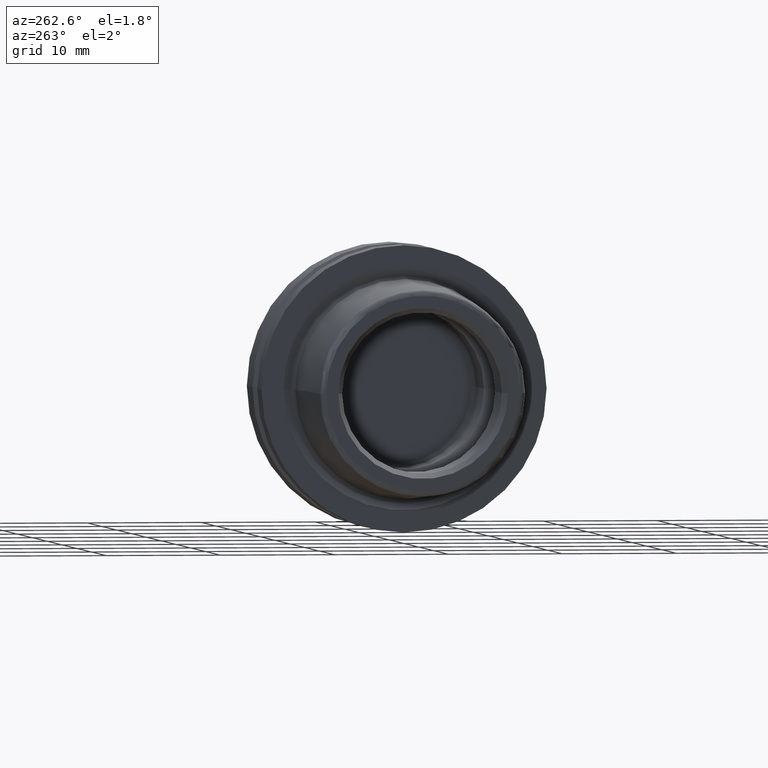
[diagram: clean part render]
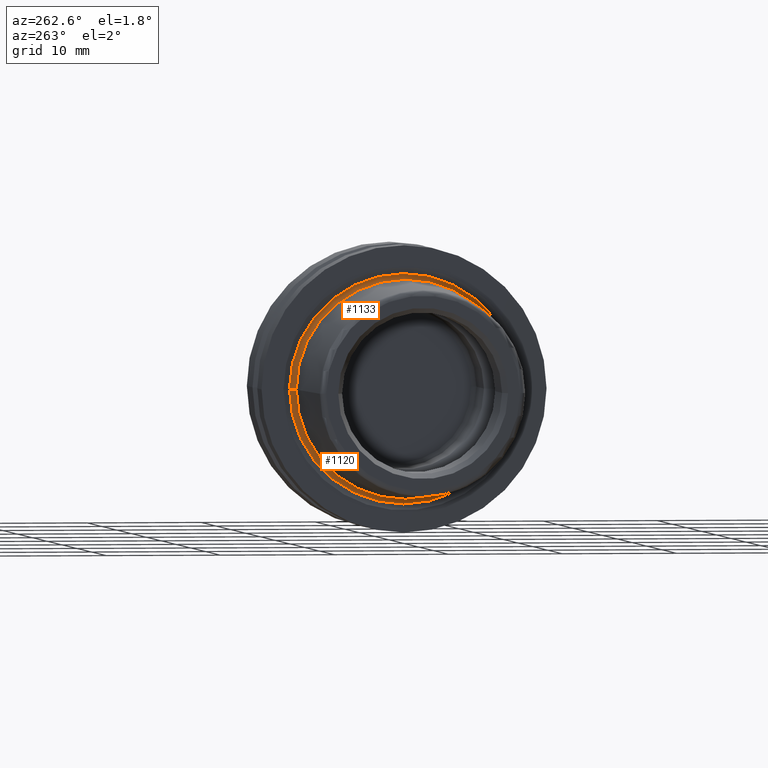
[diagram: same view with one multi-face feature highlighted, each face labeled with its STEP entity id]
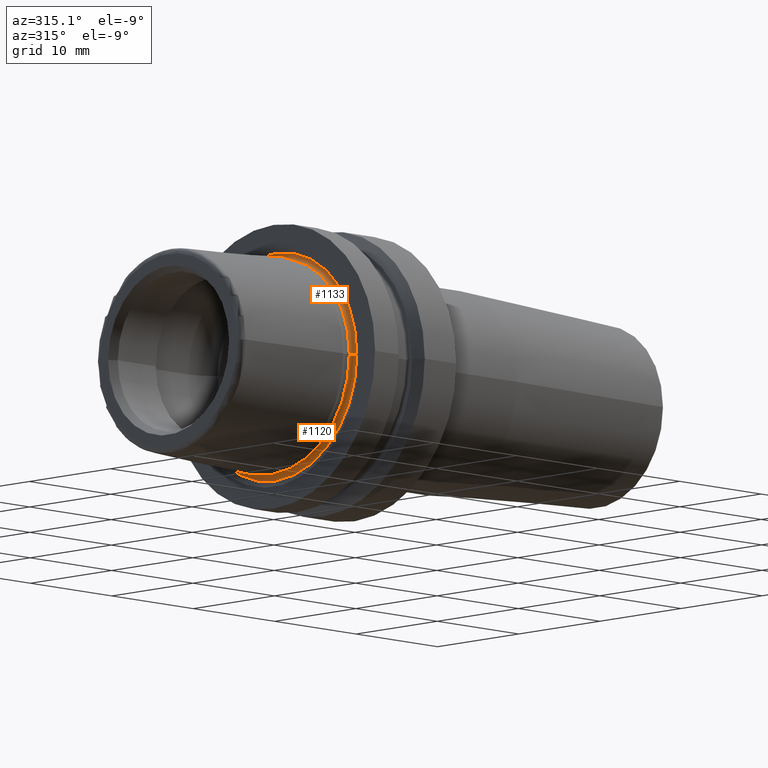
[diagram: same view with one multi-face feature highlighted, each face labeled with its STEP entity id]
A machine part, auxiliary view. The highlighted faces form ONE feature: a constant-radius fillet chain: 2 tangent blend faces with common blend radius 0.4 mm. The faces share edges in the B-rep.
A second angle (auxiliary view) of the same feature is appended — it is thin or edge-on in the first view.
Their STEP definitions:
[1] entity #1120 (Torus):
#261=CARTESIAN_POINT('',(-1.541771632753E-1,0.E0,0.E0));
#262=DIRECTION('',(-1.E0,0.E0,0.E0));
#263=DIRECTION('',(0.E0,1.E0,0.E0));
#264=AXIS2_PLACEMENT_3D('',#261,#262,#263);
#266=CARTESIAN_POINT('',(-1.541771632753E-1,9.877538461538E0,0.E0));
#267=DIRECTION('',(0.E0,0.E0,-1.E0));
#268=DIRECTION('',(9.304175679820E-1,3.665012267243E-1,0.E0));
#269=AXIS2_PLACEMENT_3D('',#266,#267,#268);
#271=CARTESIAN_POINT('',(-1.541771632753E-1,-9.877538461538E0,0.E0));
#272=DIRECTION('',(0.E0,0.E0,1.E0));
#273=DIRECTION('',(9.304175679820E-1,-3.665012267243E-1,0.E0));
#274=AXIS2_PLACEMENT_3D('',#271,#272,#273);
#276=CARTESIAN_POINT('',(2.179898639175E-1,0.E0,0.E0));
#277=DIRECTION('',(-1.E0,0.E0,0.E0));
#278=DIRECTION('',(0.E0,1.E0,0.E0));
#279=AXIS2_PLACEMENT_3D('',#276,#277,#278);
#578=CARTESIAN_POINT('',(2.179898639175E-1,-1.002413895223E1,0.E0));
#579=CARTESIAN_POINT('',(-1.541771632753E-1,-9.477538461538E0,0.E0));
#580=VERTEX_POINT('',#578);
#581=VERTEX_POINT('',#579);
#586=CARTESIAN_POINT('',(2.179898639175E-1,1.002413895223E1,0.E0));
#587=CARTESIAN_POINT('',(-1.541771632753E-1,9.477538461538E0,0.E0));
#588=VERTEX_POINT('',#586);
#589=VERTEX_POINT('',#587);
#1106=CARTESIAN_POINT('',(-1.541771632753E-1,0.E0,0.E0));
#1107=DIRECTION('',(-1.E0,0.E0,0.E0));
#1108=DIRECTION('',(0.E0,-1.E0,0.E0));
#1109=AXIS2_PLACEMENT_3D('',#1106,#1107,#1108);
#1110=TOROIDAL_SURFACE('',#1109,9.877538461538E0,4.E-1);
#1112=ORIENTED_EDGE('',*,*,#1111,.T.);
#1113=ORIENTED_EDGE('',*,*,#1101,.T.);
#1115=ORIENTED_EDGE('',*,*,#1114,.F.);
#1117=ORIENTED_EDGE('',*,*,#1116,.F.);
#1118=EDGE_LOOP('',(#1112,#1113,#1115,#1117));
#1119=FACE_OUTER_BOUND('',#1118,.F.);
#1120=ADVANCED_FACE('',(#1119),#1110,.F.);
#265=CIRCLE('',#264,9.477538461538E0);
#270=CIRCLE('',#269,4.E-1);
#275=CIRCLE('',#274,4.E-1);
#280=CIRCLE('',#279,1.002413895223E1);
#1101=EDGE_CURVE('',#589,#581,#265,.T.);
#1111=EDGE_CURVE('',#588,#589,#270,.T.);
#1114=EDGE_CURVE('',#580,#581,#275,.T.);
#1116=EDGE_CURVE('',#588,#580,#280,.T.);
[2] entity #1133 (Torus):
#248=CARTESIAN_POINT('',(-1.541771632753E-1,0.E0,0.E0));
#249=DIRECTION('',(-1.E0,0.E0,0.E0));
#250=DIRECTION('',(0.E0,-1.E0,0.E0));
#251=AXIS2_PLACEMENT_3D('',#248,#249,#250);
#266=CARTESIAN_POINT('',(-1.541771632753E-1,9.877538461538E0,0.E0));
#267=DIRECTION('',(0.E0,0.E0,-1.E0));
#268=DIRECTION('',(9.304175679820E-1,3.665012267243E-1,0.E0));
#269=AXIS2_PLACEMENT_3D('',#266,#267,#268);
#271=CARTESIAN_POINT('',(-1.541771632753E-1,-9.877538461538E0,0.E0));
#272=DIRECTION('',(0.E0,0.E0,1.E0));
#273=DIRECTION('',(9.304175679820E-1,-3.665012267243E-1,0.E0));
#274=AXIS2_PLACEMENT_3D('',#271,#272,#273);
#281=CARTESIAN_POINT('',(2.179898639175E-1,0.E0,0.E0));
#282=DIRECTION('',(-1.E0,0.E0,0.E0));
#283=DIRECTION('',(0.E0,-1.E0,0.E0));
#284=AXIS2_PLACEMENT_3D('',#281,#282,#283);
#578=CARTESIAN_POINT('',(2.179898639175E-1,-1.002413895223E1,0.E0));
#579=CARTESIAN_POINT('',(-1.541771632753E-1,-9.477538461538E0,0.E0));
#580=VERTEX_POINT('',#578);
#581=VERTEX_POINT('',#579);
#586=CARTESIAN_POINT('',(2.179898639175E-1,1.002413895223E1,0.E0));
#587=CARTESIAN_POINT('',(-1.541771632753E-1,9.477538461538E0,0.E0));
#588=VERTEX_POINT('',#586);
#589=VERTEX_POINT('',#587);
#1121=CARTESIAN_POINT('',(-1.541771632753E-1,0.E0,0.E0));
#1122=DIRECTION('',(-1.E0,0.E0,0.E0));
#1123=DIRECTION('',(0.E0,1.E0,0.E0));
#1124=AXIS2_PLACEMENT_3D('',#1121,#1122,#1123);
#1125=TOROIDAL_SURFACE('',#1124,9.877538461538E0,4.E-1);
#1126=ORIENTED_EDGE('',*,*,#1114,.T.);
#1127=ORIENTED_EDGE('',*,*,#1088,.T.);
#1128=ORIENTED_EDGE('',*,*,#1111,.F.);
#1130=ORIENTED_EDGE('',*,*,#1129,.F.);
#1131=EDGE_LOOP('',(#1126,#1127,#1128,#1130));
#1132=FACE_OUTER_BOUND('',#1131,.F.);
#1133=ADVANCED_FACE('',(#1132),#1125,.F.);
#252=CIRCLE('',#251,9.477538461538E0);
#270=CIRCLE('',#269,4.E-1);
#275=CIRCLE('',#274,4.E-1);
#285=CIRCLE('',#284,1.002413895223E1);
#1088=EDGE_CURVE('',#581,#589,#252,.T.);
#1111=EDGE_CURVE('',#588,#589,#270,.T.);
#1114=EDGE_CURVE('',#580,#581,#275,.T.);
#1129=EDGE_CURVE('',#580,#588,#285,.T.);